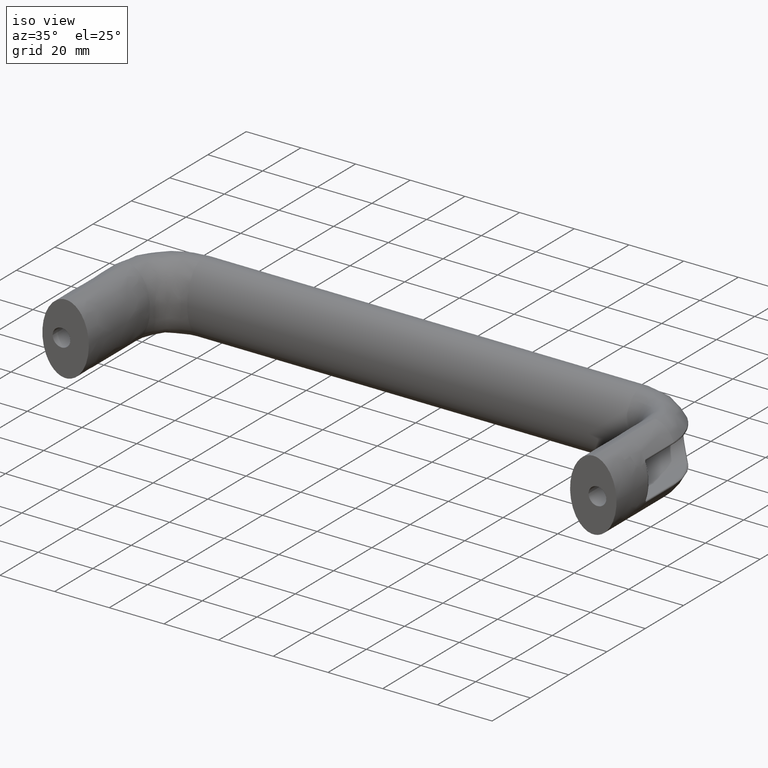
[diagram: clean part render]
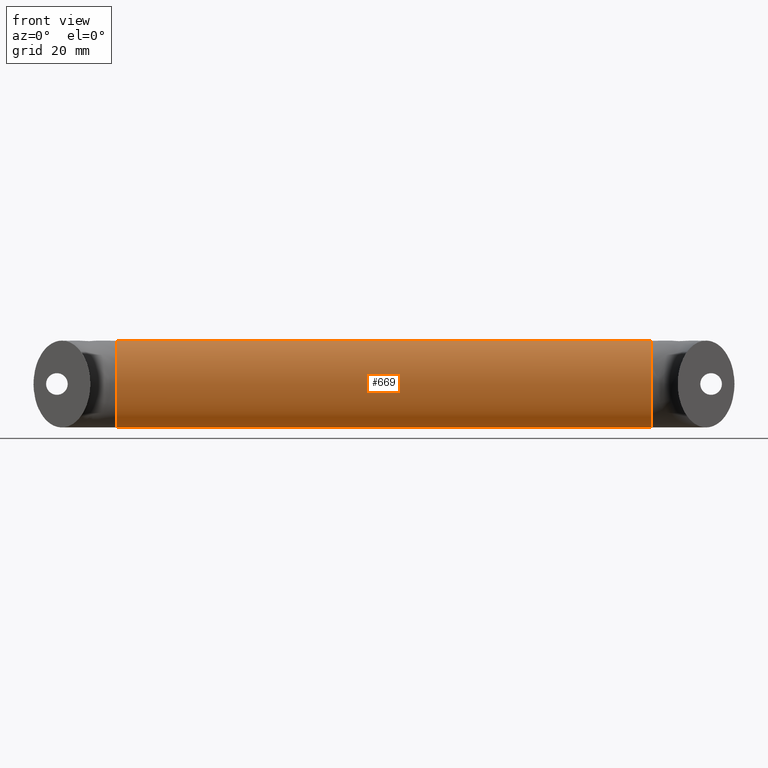
[diagram: tour spotlight — one face highlighted and labeled with its STEP entity id]
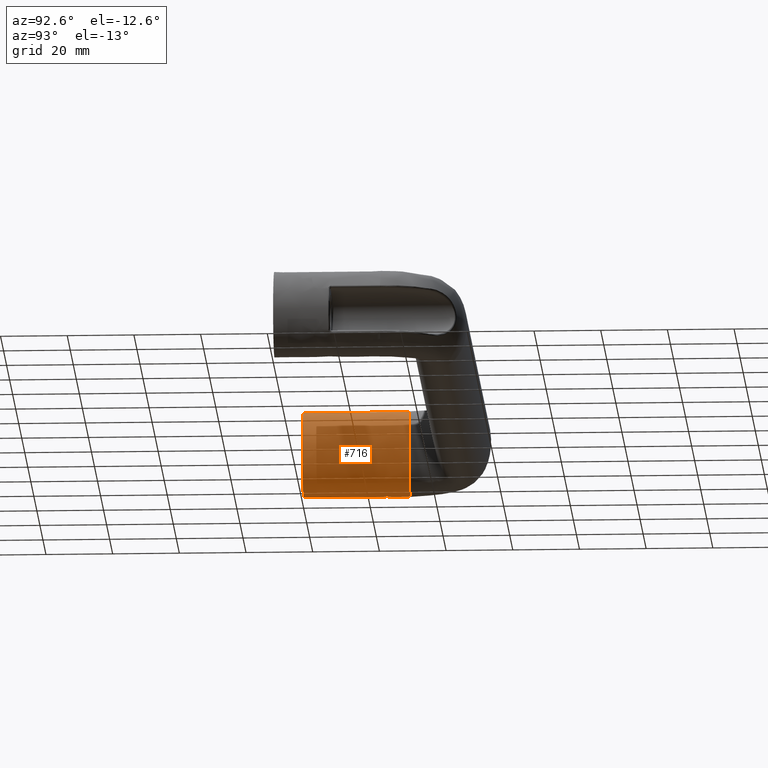
[diagram: tour spotlight — one face highlighted and labeled with its STEP entity id]
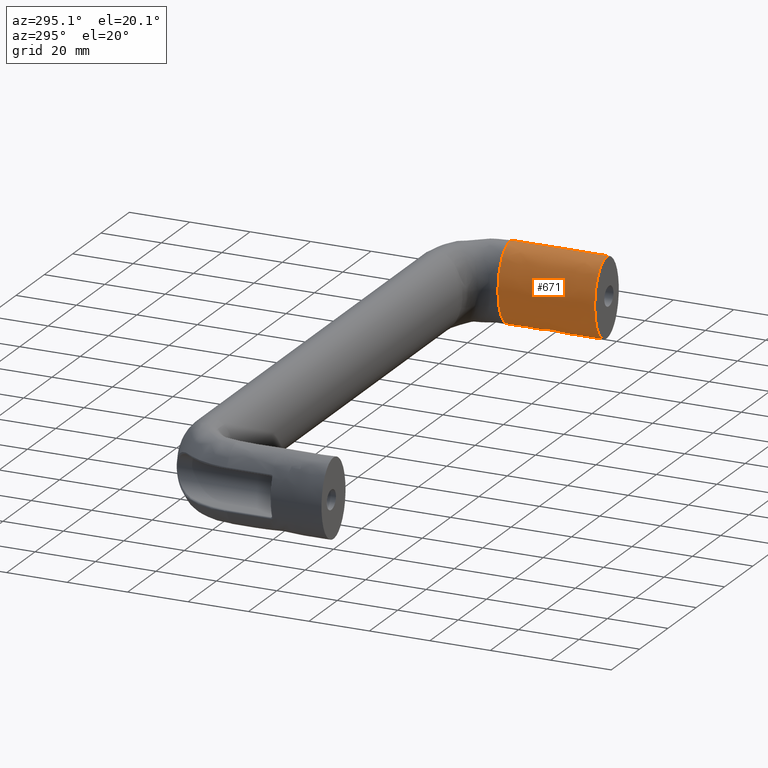
[diagram: tour spotlight — one face highlighted and labeled with its STEP entity id]
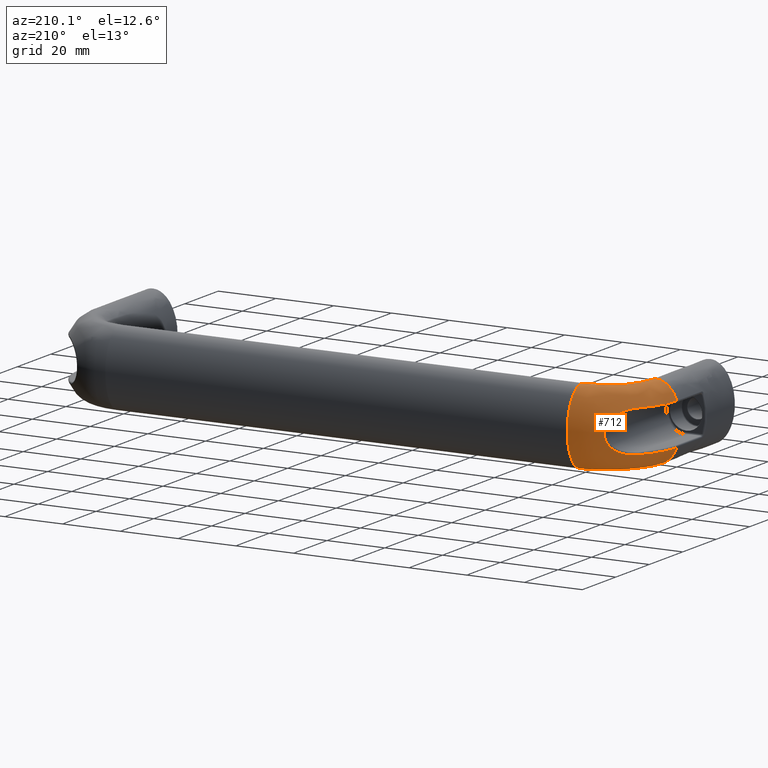
[diagram: tour spotlight — one face highlighted and labeled with its STEP entity id]
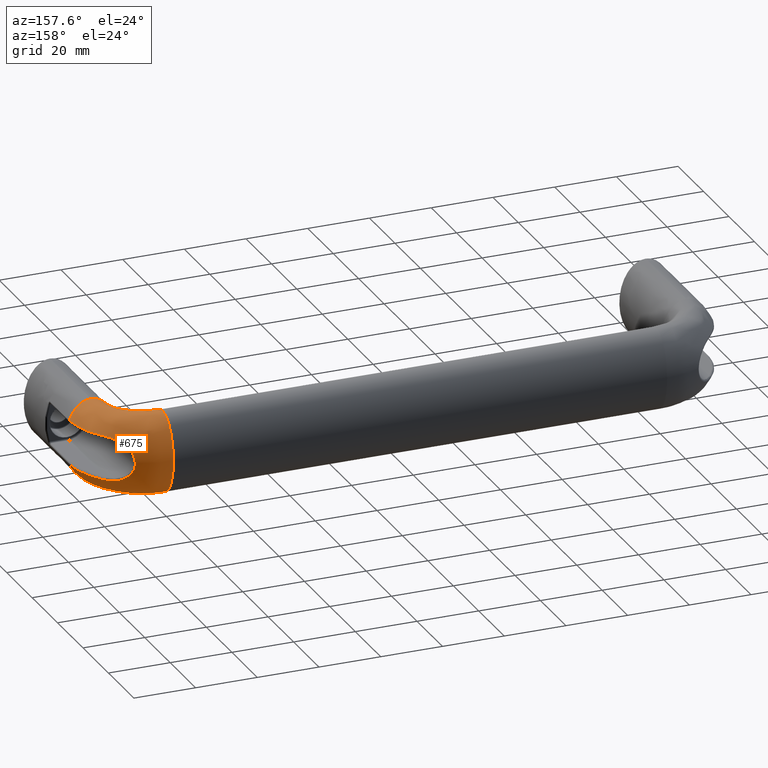
[diagram: tour spotlight — one face highlighted and labeled with its STEP entity id]
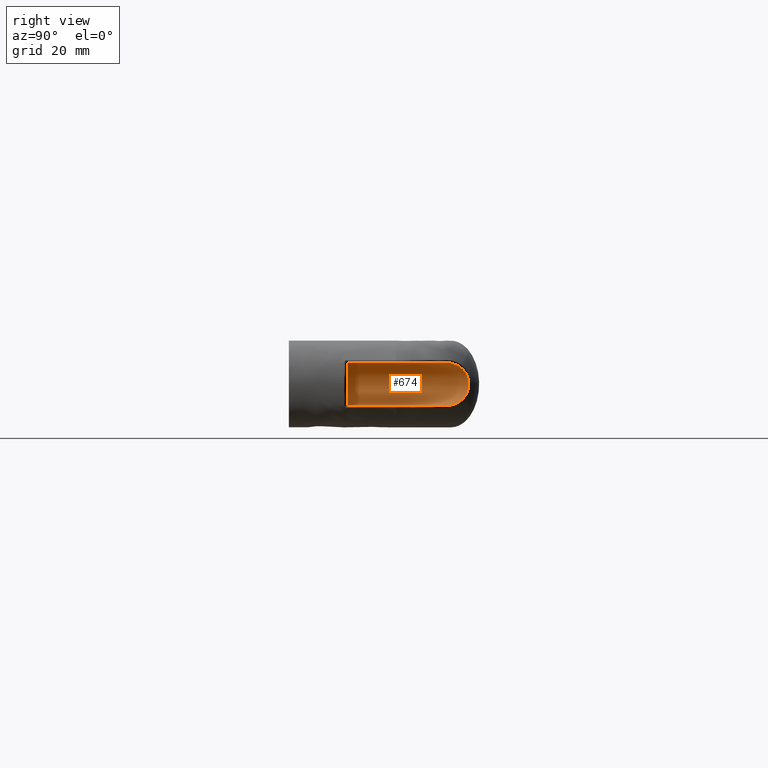
[diagram: tour spotlight — one face highlighted and labeled with its STEP entity id]
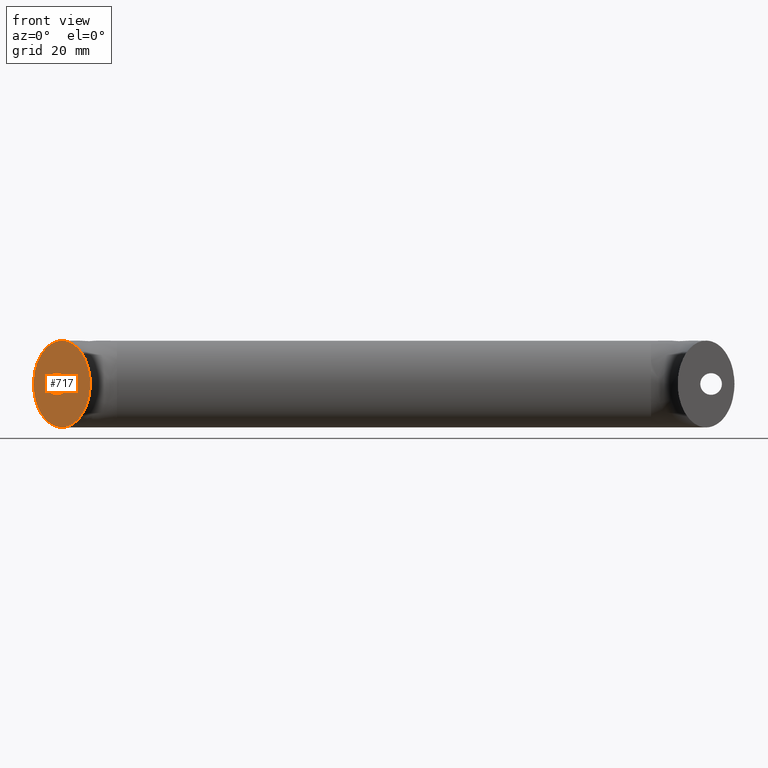
[diagram: tour spotlight — one face highlighted and labeled with its STEP entity id]
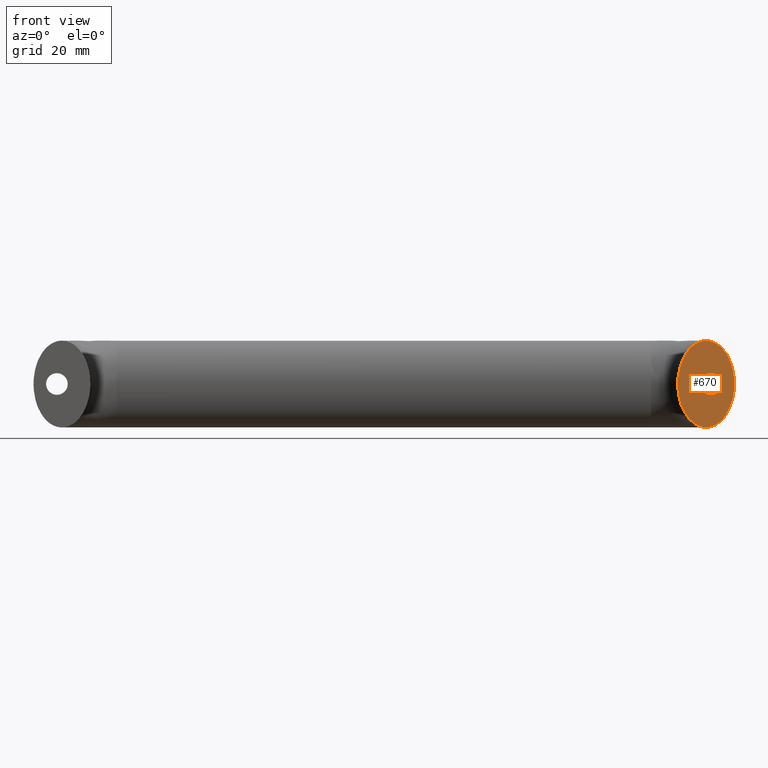
[diagram: tour spotlight — one face highlighted and labeled with its STEP entity id]
A machine part: a face-by-face anatomy tour. The part has 49 B-rep faces; the first image is the clean iso view, then the 8 largest visible faces are spotlighted one at a time (largest first), each with its STEP entity span.

Face 1 — front view, entity #669. In plain terms, the highlighted face is a freeform B-spline surface patch.
Definition (entity closure, byte-faithful):
#162=FACE_OUTER_BOUND('',#211,.T.);
#211=EDGE_LOOP('',(#470,#471,#472,#473));
#276=B_SPLINE_CURVE_WITH_KNOTS('',1,(#1018,#1019),.UNSPECIFIED.,.F.,.F.,
(2,2),(-6.15384615384616,6.15384615384615),.UNSPECIFIED.);
#299=ELLIPSE('',#720,13.,8.5);
#300=ELLIPSE('',#721,13.,8.5);
#311=VERTEX_POINT('',#1015);
#312=VERTEX_POINT('',#1017);
#373=EDGE_CURVE('',#311,#311,#299,.T.);
#374=EDGE_CURVE('',#311,#312,#276,.T.);
#375=EDGE_CURVE('',#312,#312,#300,.T.);
#470=ORIENTED_EDGE('',*,*,#373,.F.);
#471=ORIENTED_EDGE('',*,*,#374,.T.);
#472=ORIENTED_EDGE('',*,*,#375,.T.);
#473=ORIENTED_EDGE('',*,*,#374,.F.);
#664=(
BOUNDED_SURFACE()
B_SPLINE_SURFACE(1,2,((#997,#998,#999,#1000,#1001,#1002,#1003,#1004,#1005),
(#1006,#1007,#1008,#1009,#1010,#1011,#1012,#1013,#1014)),.UNSPECIFIED.,
 .F.,.T.,.F.)
B_SPLINE_SURFACE_WITH_KNOTS((2,2),(3,2,2,2,3),(-6.15384615384615,6.15384615384616),
(-3.14159265358979,-1.5707963267949,0.,1.5707963267949,3.14159265358979),
 .UNSPECIFIED.)
GEOMETRIC_REPRESENTATION_ITEM()
RATIONAL_B_SPLINE_SURFACE(((1.,0.707106781186548,1.,0.707106781186548,1.,
0.707106781186548,1.,0.707106781186548,1.),(1.,0.707106781186548,1.,0.707106781186548,
1.,0.707106781186548,1.,0.707106781186548,1.)))
REPRESENTATION_ITEM('')
SURFACE()
);
#669=ADVANCED_FACE('',(#162),#664,.F.);
#720=AXIS2_PLACEMENT_3D('',#1016,#806,#807);
#721=AXIS2_PLACEMENT_3D('',#1020,#808,#809);
#806=DIRECTION('center_axis',(1.,6.12323399573677E-17,0.));
#807=DIRECTION('ref_axis',(0.,0.,-1.));
#808=DIRECTION('center_axis',(1.,6.12323399573677E-17,0.));
#809=DIRECTION('ref_axis',(0.,0.,-1.));
#997=CARTESIAN_POINT('Ctrl Pts',(16.5,48.5000000000001,-13.));
#998=CARTESIAN_POINT('Ctrl Pts',(16.5,57.0000000000001,-13.));
#999=CARTESIAN_POINT('Ctrl Pts',(16.5,57.0000000000001,0.));
#1000=CARTESIAN_POINT('Ctrl Pts',(16.5,57.0000000000001,13.));
#1001=CARTESIAN_POINT('Ctrl Pts',(16.5,48.5000000000001,13.));
#1002=CARTESIAN_POINT('Ctrl Pts',(16.5,40.0000000000001,13.));
#1003=CARTESIAN_POINT('Ctrl Pts',(16.5,40.0000000000001,0.));
#1004=CARTESIAN_POINT('Ctrl Pts',(16.5,40.0000000000001,-13.));
#1005=CARTESIAN_POINT('Ctrl Pts',(16.5,48.5000000000001,-13.));
#1006=CARTESIAN_POINT('Ctrl Pts',(176.5,48.5000000000001,-13.));
#1007=CARTESIAN_POINT('Ctrl Pts',(176.5,57.0000000000001,-13.));
#1008=CARTESIAN_POINT('Ctrl Pts',(176.5,57.0000000000001,0.));
#1009=CARTESIAN_POINT('Ctrl Pts',(176.5,57.0000000000001,13.));
#1010=CARTESIAN_POINT('Ctrl Pts',(176.5,48.5000000000001,13.));
#1011=CARTESIAN_POINT('Ctrl Pts',(176.5,40.0000000000001,13.));
#1012=CARTESIAN_POINT('Ctrl Pts',(176.5,40.0000000000001,0.));
#1013=CARTESIAN_POINT('Ctrl Pts',(176.5,40.0000000000001,-13.));
#1014=CARTESIAN_POINT('Ctrl Pts',(176.5,48.5000000000001,-13.));
#1015=CARTESIAN_POINT('',(176.5,48.5000000000001,-13.));
#1016=CARTESIAN_POINT('Origin',(176.5,48.5000000000001,0.));
#1017=CARTESIAN_POINT('',(16.5,48.5,-13.));
#1018=CARTESIAN_POINT('Ctrl Pts',(176.5,48.5000000000001,-13.));
#1019=CARTESIAN_POINT('Ctrl Pts',(16.5,48.5000000000001,-13.));
#1020=CARTESIAN_POINT('Origin',(16.5,48.5,0.));

Face 2 — auxiliary view, entity #716. In plain terms, the highlighted face is a freeform B-spline surface patch.
Definition (entity closure, byte-faithful):
#65=LINE('',#1593,#87);
#67=LINE('',#1781,#89);
#73=LINE('',#1876,#95);
#87=VECTOR('',#947,14.5);
#89=VECTOR('',#957,14.5);
#95=VECTOR('',#991,32.);
#209=FACE_OUTER_BOUND('',#273,.T.);
#273=EDGE_LOOP('',(#651,#652,#653,#654,#655,#656,#657,#658,#659,#660,#661));
#290=B_SPLINE_CURVE_WITH_KNOTS('',3,(#1529,#1530,#1531,#1532,#1533,#1534),
 .UNSPECIFIED.,.F.,.F.,(4,1,1,4),(-0.162803649215564,-0.11628832086826,
-0.0697729925209562,0.),.UNSPECIFIED.);
#291=B_SPLINE_CURVE_WITH_KNOTS('',3,(#1574,#1575,#1576,#1577,#1578,#1579),
 .UNSPECIFIED.,.F.,.F.,(4,1,1,4),(-0.162801566641001,-0.116286833315001,
-0.0697720999890005,0.),.UNSPECIFIED.);
#306=ELLIPSE('',#794,13.0000000000007,8.50000000000101);
#307=ELLIPSE('',#795,13.,8.5);
#308=ELLIPSE('',#796,13.,8.5);
#309=ELLIPSE('',#798,13.,8.5);
#310=ELLIPSE('',#802,13.,8.5);
#355=VERTEX_POINT('',#1526);
#356=VERTEX_POINT('',#1528);
#357=VERTEX_POINT('',#1572);
#358=VERTEX_POINT('',#1573);
#361=VERTEX_POINT('',#1591);
#367=VERTEX_POINT('',#1768);
#370=VERTEX_POINT('',#1846);
#371=VERTEX_POINT('',#1848);
#372=VERTEX_POINT('',#1875);
#436=EDGE_CURVE('',#355,#356,#290,.T.);
#438=EDGE_CURVE('',#357,#358,#291,.T.);
#443=EDGE_CURVE('',#361,#355,#65,.T.);
#454=EDGE_CURVE('',#358,#367,#67,.T.);
#461=EDGE_CURVE('',#356,#357,#306,.T.);
#462=EDGE_CURVE('',#367,#370,#307,.T.);
#463=EDGE_CURVE('',#370,#371,#308,.T.);
#465=EDGE_CURVE('',#371,#361,#309,.T.);
#468=EDGE_CURVE('',#370,#372,#73,.T.);
#469=EDGE_CURVE('',#372,#372,#310,.T.);
#651=ORIENTED_EDGE('',*,*,#443,.F.);
#652=ORIENTED_EDGE('',*,*,#465,.F.);
#653=ORIENTED_EDGE('',*,*,#463,.F.);
#654=ORIENTED_EDGE('',*,*,#468,.T.);
#655=ORIENTED_EDGE('',*,*,#469,.T.);
#656=ORIENTED_EDGE('',*,*,#468,.F.);
#657=ORIENTED_EDGE('',*,*,#462,.F.);
#658=ORIENTED_EDGE('',*,*,#454,.F.);
#659=ORIENTED_EDGE('',*,*,#438,.F.);
#660=ORIENTED_EDGE('',*,*,#461,.F.);
#661=ORIENTED_EDGE('',*,*,#436,.F.);
#668=(
BOUNDED_SURFACE()
B_SPLINE_SURFACE(2,1,((#1857,#1858),(#1859,#1860),(#1861,#1862),(#1863,
#1864),(#1865,#1866),(#1867,#1868),(#1869,#1870),(#1871,#1872),(#1873,#1874)),
 .UNSPECIFIED.,.T.,.F.,.F.)
B_SPLINE_SURFACE_WITH_KNOTS((3,2,2,2,3),(2,2),(-3.14159265358979,-1.5707963267949,
0.,1.5707963267949,3.14159265358979),(0.,3.84),.UNSPECIFIED.)
GEOMETRIC_REPRESENTATION_ITEM()
RATIONAL_B_SPLINE_SURFACE(((1.,1.),(0.707106781186548,0.707106781186548),
(1.,1.),(0.707106781186548,0.707106781186548),(1.,1.),(0.707106781186548,
0.707106781186548),(1.,1.),(0.707106781186548,0.707106781186548),(1.,1.)))
REPRESENTATION_ITEM('')
SURFACE()
);
#716=ADVANCED_FACE('',(#209),#668,.T.);
#794=AXIS2_PLACEMENT_3D('',#1818,#973,#974);
#795=AXIS2_PLACEMENT_3D('',#1847,#975,#976);
#796=AXIS2_PLACEMENT_3D('',#1849,#977,#978);
#798=AXIS2_PLACEMENT_3D('',#1851,#981,#982);
#802=AXIS2_PLACEMENT_3D('',#1877,#992,#993);
#947=DIRECTION('',(1.73472347597681E-16,-1.,0.));
#957=DIRECTION('',(-1.73472347597681E-16,1.,0.));
#973=DIRECTION('center_axis',(2.18335285217344E-15,1.,-1.96157278075204E-26));
#974=DIRECTION('ref_axis',(-5.43110620688082E-15,1.96275858287477E-26,1.));
#975=DIRECTION('center_axis',(0.,1.,0.));
#976=DIRECTION('ref_axis',(0.,0.,-1.));
#977=DIRECTION('center_axis',(0.,1.,0.));
#978=DIRECTION('ref_axis',(0.,0.,-1.));
#981=DIRECTION('center_axis',(0.,1.,0.));
#982=DIRECTION('ref_axis',(0.,0.,-1.));
#991=DIRECTION('',(1.73472347597681E-16,-1.,0.));
#992=DIRECTION('center_axis',(0.,1.,0.));
#993=DIRECTION('ref_axis',(0.,0.,-1.));
#1526=CARTESIAN_POINT('',(-7.07752292926048,17.5,-7.19939933326705));
#1528=CARTESIAN_POINT('',(-7.48300591698164,16.5,-6.16613274174768));
#1529=CARTESIAN_POINT('Ctrl Pts',(-7.07752292922739,17.5,-7.19939933334315));
#1530=CARTESIAN_POINT('Ctrl Pts',(-7.07752292922739,17.344948905509,-7.19939933334315));
#1531=CARTESIAN_POINT('Ctrl Pts',(-7.11148146669345,17.0359268522296,-7.12201041401155));
#1532=CARTESIAN_POINT('Ctrl Pts',(-7.2609256925932,16.6224701056188,-6.76616779655913));
#1533=CARTESIAN_POINT('Ctrl Pts',(-7.40326259068019,16.4999999999122,-6.39249625163423));
#1534=CARTESIAN_POINT('Ctrl Pts',(-7.48300591698164,16.5,-6.16613274174768));
#1572=CARTESIAN_POINT('',(-7.48300591687084,16.5,6.1661327420622));
#1573=CARTESIAN_POINT('',(-7.07752292926047,17.5,7.19939933326707));
#1574=CARTESIAN_POINT('Ctrl Pts',(-7.48300591687084,16.5,6.1661327420622));
#1575=CARTESIAN_POINT('Ctrl Pts',(-7.4298443793813,16.499999999986,6.31703981823325));
#1576=CARTESIAN_POINT('Ctrl Pts',(-7.31924589596769,16.5653278864208,6.61635681753704));
#1577=CARTESIAN_POINT('Ctrl Pts',(-7.14320757920186,16.8860053352928,7.05110482725177));
#1578=CARTESIAN_POINT('Ctrl Pts',(-7.07752292922738,17.2674263333702,7.19939933334317));
#1579=CARTESIAN_POINT('Ctrl Pts',(-7.07752292922738,17.5,7.19939933334317));
#1591=CARTESIAN_POINT('',(-7.07752292926049,32.,-7.19939933326705));
#1593=CARTESIAN_POINT('',(-7.07752292926048,-1.22775451771523E-15,-7.19939933326705));
#1768=CARTESIAN_POINT('',(-7.07752292922738,32.,7.19939933334317));
#1781=CARTESIAN_POINT('',(-7.07752292926047,-1.22775451771523E-15,7.19939933326707));
#1818=CARTESIAN_POINT('Origin',(1.00364161426114E-12,16.5,-5.44009282066327E-14));
#1846=CARTESIAN_POINT('',(-4.51016534385053E-15,32.,13.));
#1847=CARTESIAN_POINT('Origin',(-5.55111512312578E-15,32.,0.));
#1848=CARTESIAN_POINT('',(-5.55111512312578E-15,32.,-13.));
#1849=CARTESIAN_POINT('Origin',(-5.55111512312578E-15,32.,0.));
#1851=CARTESIAN_POINT('Origin',(-5.55111512312578E-15,32.,0.));
#1857=CARTESIAN_POINT('Ctrl Pts',(2.5578757073893E-31,-1.47451495458029E-15,
13.));
#1858=CARTESIAN_POINT('Ctrl Pts',(-6.66133814775094E-15,38.4,13.));
#1859=CARTESIAN_POINT('Ctrl Pts',(8.5,-4.93038065763132E-31,13.));
#1860=CARTESIAN_POINT('Ctrl Pts',(8.49999999999999,38.4,13.));
#1861=CARTESIAN_POINT('Ctrl Pts',(8.5,0.,0.));
#1862=CARTESIAN_POINT('Ctrl Pts',(8.49999999999999,38.4,0.));
#1863=CARTESIAN_POINT('Ctrl Pts',(8.5,-3.69778549322349E-31,-13.));
#1864=CARTESIAN_POINT('Ctrl Pts',(8.49999999999999,38.4,-13.));
#1865=CARTESIAN_POINT('Ctrl Pts',(2.5578757073893E-31,-1.47451495458029E-15,
-13.));
#1866=CARTESIAN_POINT('Ctrl Pts',(-6.66133814775094E-15,38.4,-13.));
#1867=CARTESIAN_POINT('Ctrl Pts',(-8.5,-2.94902990916057E-15,-13.));
#1868=CARTESIAN_POINT('Ctrl Pts',(-8.50000000000001,38.4,-13.));
#1869=CARTESIAN_POINT('Ctrl Pts',(-8.5,-2.94902990916057E-15,0.));
#1870=CARTESIAN_POINT('Ctrl Pts',(-8.50000000000001,38.4,0.));
#1871=CARTESIAN_POINT('Ctrl Pts',(-8.5,-2.94902990916057E-15,13.));
#1872=CARTESIAN_POINT('Ctrl Pts',(-8.50000000000001,38.4,13.));
#1873=CARTESIAN_POINT('Ctrl Pts',(2.5578757073893E-31,-1.47451495458029E-15,
13.));
#1874=CARTESIAN_POINT('Ctrl Pts',(-6.66133814775094E-15,38.4,13.));
#1875=CARTESIAN_POINT('',(1.04094977927525E-15,-1.47451495458029E-15,13.));
#1876=CARTESIAN_POINT('',(1.04094977927525E-15,1.80576001942165E-31,13.));
#1877=CARTESIAN_POINT('Origin',(0.,0.,0.));

Face 3 — auxiliary view, entity #671. In plain terms, the highlighted face is a freeform B-spline surface patch.
Definition (entity closure, byte-faithful):
#52=LINE('',#1045,#74);
#53=LINE('',#1051,#75);
#54=LINE('',#1069,#76);
#74=VECTOR('',#816,32.0000000000001);
#75=VECTOR('',#821,14.5000000000001);
#76=VECTOR('',#824,14.5000000000001);
#164=FACE_OUTER_BOUND('',#214,.T.);
#214=EDGE_LOOP('',(#476,#477,#478,#479,#480,#481,#482,#483,#484,#485,#486));
#277=B_SPLINE_CURVE_WITH_KNOTS('',3,(#1053,#1054,#1055,#1056,#1057,#1058),
 .UNSPECIFIED.,.F.,.F.,(4,1,1,4),(-0.162801566641003,-0.116286833315002,
-0.0697720999890013,0.),.UNSPECIFIED.);
#278=B_SPLINE_CURVE_WITH_KNOTS('',3,(#1062,#1063,#1064,#1065,#1066,#1067),
 .UNSPECIFIED.,.F.,.F.,(4,1,1,4),(-0.162803649215569,-0.116288320868263,
-0.0930306566946107,0.),.UNSPECIFIED.);
#301=ELLIPSE('',#723,13.,8.5);
#302=ELLIPSE('',#725,13.,8.5);
#303=ELLIPSE('',#726,13.,8.5);
#304=ELLIPSE('',#727,12.9999999999838,8.49999999997735);
#305=ELLIPSE('',#728,13.,8.5);
#313=VERTEX_POINT('',#1022);
#315=VERTEX_POINT('',#1044);
#316=VERTEX_POINT('',#1046);
#317=VERTEX_POINT('',#1048);
#318=VERTEX_POINT('',#1050);
#319=VERTEX_POINT('',#1052);
#320=VERTEX_POINT('',#1059);
#321=VERTEX_POINT('',#1061);
#322=VERTEX_POINT('',#1068);
#376=EDGE_CURVE('',#313,#313,#301,.T.);
#378=EDGE_CURVE('',#313,#315,#52,.T.);
#379=EDGE_CURVE('',#315,#316,#302,.T.);
#380=EDGE_CURVE('',#316,#317,#303,.T.);
#381=EDGE_CURVE('',#318,#317,#53,.T.);
#382=EDGE_CURVE('',#319,#318,#277,.T.);
#383=EDGE_CURVE('',#320,#319,#304,.T.);
#384=EDGE_CURVE('',#321,#320,#278,.T.);
#385=EDGE_CURVE('',#322,#321,#54,.T.);
#386=EDGE_CURVE('',#322,#315,#305,.T.);
#476=ORIENTED_EDGE('',*,*,#376,.F.);
#477=ORIENTED_EDGE('',*,*,#378,.T.);
#478=ORIENTED_EDGE('',*,*,#379,.T.);
#479=ORIENTED_EDGE('',*,*,#380,.T.);
#480=ORIENTED_EDGE('',*,*,#381,.F.);
#481=ORIENTED_EDGE('',*,*,#382,.F.);
#482=ORIENTED_EDGE('',*,*,#383,.F.);
#483=ORIENTED_EDGE('',*,*,#384,.F.);
#484=ORIENTED_EDGE('',*,*,#385,.F.);
#485=ORIENTED_EDGE('',*,*,#386,.T.);
#486=ORIENTED_EDGE('',*,*,#378,.F.);
#665=(
BOUNDED_SURFACE()
B_SPLINE_SURFACE(2,1,((#1026,#1027),(#1028,#1029),(#1030,#1031),(#1032,
#1033),(#1034,#1035),(#1036,#1037),(#1038,#1039),(#1040,#1041),(#1042,#1043)),
 .UNSPECIFIED.,.T.,.F.,.F.)
B_SPLINE_SURFACE_WITH_KNOTS((3,2,2,2,3),(2,2),(-3.14159265358979,-1.5707963267949,
0.,1.5707963267949,3.14159265358979),(0.,3.84000000000001),
 .UNSPECIFIED.)
GEOMETRIC_REPRESENTATION_ITEM()
RATIONAL_B_SPLINE_SURFACE(((1.,1.),(0.707106781186548,0.707106781186548),
(1.,1.),(0.707106781186548,0.707106781186548),(1.,1.),(0.707106781186548,
0.707106781186548),(1.,1.),(0.707106781186548,0.707106781186548),(1.,1.)))
REPRESENTATION_ITEM('')
SURFACE()
);
#671=ADVANCED_FACE('',(#164),#665,.T.);
#723=AXIS2_PLACEMENT_3D('',#1023,#812,#813);
#725=AXIS2_PLACEMENT_3D('',#1047,#817,#818);
#726=AXIS2_PLACEMENT_3D('',#1049,#819,#820);
#727=AXIS2_PLACEMENT_3D('',#1060,#822,#823);
#728=AXIS2_PLACEMENT_3D('',#1070,#825,#826);
#812=DIRECTION('center_axis',(3.44509284839767E-16,-1.,0.));
#813=DIRECTION('ref_axis',(0.,0.,-1.));
#816=DIRECTION('',(0.,1.,0.));
#817=DIRECTION('center_axis',(3.44509284839767E-16,-1.,0.));
#818=DIRECTION('ref_axis',(0.,0.,-1.));
#819=DIRECTION('center_axis',(3.44509284839767E-16,-1.,0.));
#820=DIRECTION('ref_axis',(0.,0.,-1.));
#821=DIRECTION('',(0.,1.,0.));
#822=DIRECTION('center_axis',(4.36670599670736E-15,1.,-3.9236175640155E-26));
#823=DIRECTION('ref_axis',(-4.29576659534567E-14,3.94237591376785E-26,1.));
#824=DIRECTION('',(0.,-1.,0.));
#825=DIRECTION('center_axis',(3.44509284839767E-16,-1.,0.));
#826=DIRECTION('ref_axis',(0.,0.,-1.));
#1022=CARTESIAN_POINT('',(193.,-4.44089209850063E-15,13.));
#1023=CARTESIAN_POINT('Origin',(193.,0.,0.));
#1026=CARTESIAN_POINT('Ctrl Pts',(193.,32.0000000000001,13.));
#1027=CARTESIAN_POINT('Ctrl Pts',(193.,-6.40000000000002,13.));
#1028=CARTESIAN_POINT('Ctrl Pts',(184.5,32.0000000000001,13.));
#1029=CARTESIAN_POINT('Ctrl Pts',(184.5,-6.40000000000002,13.));
#1030=CARTESIAN_POINT('Ctrl Pts',(184.5,32.0000000000001,0.));
#1031=CARTESIAN_POINT('Ctrl Pts',(184.5,-6.40000000000002,0.));
#1032=CARTESIAN_POINT('Ctrl Pts',(184.5,32.0000000000001,-13.));
#1033=CARTESIAN_POINT('Ctrl Pts',(184.5,-6.40000000000002,-13.));
#1034=CARTESIAN_POINT('Ctrl Pts',(193.,32.0000000000001,-13.));
#1035=CARTESIAN_POINT('Ctrl Pts',(193.,-6.40000000000002,-13.));
#1036=CARTESIAN_POINT('Ctrl Pts',(201.5,32.0000000000001,-13.));
#1037=CARTESIAN_POINT('Ctrl Pts',(201.5,-6.40000000000002,-13.));
#1038=CARTESIAN_POINT('Ctrl Pts',(201.5,32.0000000000001,0.));
#1039=CARTESIAN_POINT('Ctrl Pts',(201.5,-6.40000000000002,0.));
#1040=CARTESIAN_POINT('Ctrl Pts',(201.5,32.0000000000001,13.));
#1041=CARTESIAN_POINT('Ctrl Pts',(201.5,-6.40000000000002,13.));
#1042=CARTESIAN_POINT('Ctrl Pts',(193.,32.0000000000001,13.));
#1043=CARTESIAN_POINT('Ctrl Pts',(193.,-6.40000000000002,13.));
#1044=CARTESIAN_POINT('',(193.,32.0000000000001,13.));
#1045=CARTESIAN_POINT('',(193.,32.0000000000001,13.));
#1046=CARTESIAN_POINT('',(193.,32.0000000000001,-13.));
#1047=CARTESIAN_POINT('Origin',(193.,32.0000000000001,0.));
#1048=CARTESIAN_POINT('',(200.077522929227,32.0000000000001,-7.19939933334315));
#1049=CARTESIAN_POINT('Origin',(193.,32.0000000000001,0.));
#1050=CARTESIAN_POINT('',(200.07752292926,17.5,-7.19939933326705));
#1051=CARTESIAN_POINT('',(200.07752292926,32.0000000000001,-7.19939933326705));
#1052=CARTESIAN_POINT('',(200.483005916871,16.5,-6.16613274206217));
#1053=CARTESIAN_POINT('Ctrl Pts',(200.483005916871,16.5,-6.16613274206218));
#1054=CARTESIAN_POINT('Ctrl Pts',(200.429844379381,16.4999999999859,-6.31703981823328));
#1055=CARTESIAN_POINT('Ctrl Pts',(200.3192490492,16.5653336977449,-6.61635071145327));
#1056=CARTESIAN_POINT('Ctrl Pts',(200.143213815373,16.886016146742,-7.05109343631951));
#1057=CARTESIAN_POINT('Ctrl Pts',(200.077522929227,17.2674263333699,-7.19939933334316));
#1058=CARTESIAN_POINT('Ctrl Pts',(200.077522929227,17.4999999999999,-7.19939933334307));
#1059=CARTESIAN_POINT('',(200.483005916982,16.5,6.16613274174768));
#1060=CARTESIAN_POINT('Origin',(193.000000000023,16.5,4.2410519540681E-13));
#1061=CARTESIAN_POINT('',(200.07752292926,17.5,7.19939933326707));
#1062=CARTESIAN_POINT('Ctrl Pts',(200.077522929227,17.5,7.19939933334316));
#1063=CARTESIAN_POINT('Ctrl Pts',(200.077522929227,17.3449489055089,7.19939933334319));
#1064=CARTESIAN_POINT('Ctrl Pts',(200.102737874363,17.1140330730565,7.1414986452404));
#1065=CARTESIAN_POINT('Ctrl Pts',(200.230215074373,16.6666940516964,6.84058929021712));
#1066=CARTESIAN_POINT('Ctrl Pts',(200.376681481913,16.4999999998828,6.46795075492982));
#1067=CARTESIAN_POINT('Ctrl Pts',(200.483005916982,16.5,6.16613274174767));
#1068=CARTESIAN_POINT('',(200.07752292926,32.0000000000001,7.19939933326706));
#1069=CARTESIAN_POINT('',(200.07752292926,32.0000000000001,7.19939933326707));
#1070=CARTESIAN_POINT('Origin',(193.,32.0000000000001,0.));

Face 4 — auxiliary view, entity #712. In plain terms, the highlighted face is a freeform B-spline surface patch.
Definition (entity closure, byte-faithful):
#151=CIRCLE('',#797,16.5);
#205=FACE_OUTER_BOUND('',#269,.T.);
#269=EDGE_LOOP('',(#630,#631,#632,#633,#634,#635,#636,#637,#638));
#293=B_SPLINE_CURVE_WITH_KNOTS('',3,(#1628,#1629,#1630,#1631,#1632),
 .UNSPECIFIED.,.F.,.F.,(4,1,4),(-1.56834099361024,-0.672146140118672,0.),
 .UNSPECIFIED.);
#295=B_SPLINE_CURVE_WITH_KNOTS('',3,(#1713,#1714,#1715,#1716,#1717,#1718,
#1719,#1720,#1721,#1722,#1723,#1724),.UNSPECIFIED.,.F.,.F.,(4,1,1,1,1,1,
1,1,1,4),(-2.73713341995059,-2.34611435996047,-1.95509529997035,-1.56407623998023,
-1.36856670998517,-1.17305717999011,-0.977547649995054,-0.782038119999995,
-0.391019060009876,-1.97568226080099E-11),.UNSPECIFIED.);
#297=B_SPLINE_CURVE_WITH_KNOTS('',3,(#1770,#1771,#1772,#1773,#1774),
 .UNSPECIFIED.,.F.,.F.,(4,1,4),(-1.56834099359296,-0.67214614011127,0.),
 .UNSPECIFIED.);
#300=ELLIPSE('',#721,13.,8.5);
#307=ELLIPSE('',#795,13.,8.5);
#308=ELLIPSE('',#796,13.,8.5);
#309=ELLIPSE('',#798,13.,8.5);
#312=VERTEX_POINT('',#1017);
#361=VERTEX_POINT('',#1591);
#363=VERTEX_POINT('',#1626);
#365=VERTEX_POINT('',#1711);
#367=VERTEX_POINT('',#1768);
#370=VERTEX_POINT('',#1846);
#371=VERTEX_POINT('',#1848);
#375=EDGE_CURVE('',#312,#312,#300,.T.);
#446=EDGE_CURVE('',#363,#361,#293,.T.);
#449=EDGE_CURVE('',#365,#363,#295,.T.);
#452=EDGE_CURVE('',#367,#365,#297,.T.);
#462=EDGE_CURVE('',#367,#370,#307,.T.);
#463=EDGE_CURVE('',#370,#371,#308,.T.);
#464=EDGE_CURVE('',#371,#312,#151,.T.);
#465=EDGE_CURVE('',#371,#361,#309,.T.);
#630=ORIENTED_EDGE('',*,*,#446,.F.);
#631=ORIENTED_EDGE('',*,*,#449,.F.);
#632=ORIENTED_EDGE('',*,*,#452,.F.);
#633=ORIENTED_EDGE('',*,*,#462,.T.);
#634=ORIENTED_EDGE('',*,*,#463,.T.);
#635=ORIENTED_EDGE('',*,*,#464,.T.);
#636=ORIENTED_EDGE('',*,*,#375,.F.);
#637=ORIENTED_EDGE('',*,*,#464,.F.);
#638=ORIENTED_EDGE('',*,*,#465,.T.);
#667=(
BOUNDED_SURFACE()
B_SPLINE_SURFACE(2,2,((#1819,#1820,#1821),(#1822,#1823,#1824),(#1825,#1826,
#1827),(#1828,#1829,#1830),(#1831,#1832,#1833),(#1834,#1835,#1836),(#1837,
#1838,#1839),(#1840,#1841,#1842),(#1843,#1844,#1845)),.UNSPECIFIED.,.T.,
 .F.,.F.)
B_SPLINE_SURFACE_WITH_KNOTS((3,2,2,2,3),(3,3),(0.,1.5707963267949,3.14159265358979,
4.71238898038469,6.28318530717959),(-4.08008349979889E-5,1.5707963267949),
 .UNSPECIFIED.)
GEOMETRIC_REPRESENTATION_ITEM()
RATIONAL_B_SPLINE_SURFACE(((1.00001521597434,0.70709917339699,1.),(0.707117540505183,
0.499994620480414,0.707106781186548),(1.00001521597434,0.70709917339699,
1.),(0.707117540505183,0.499994620480414,0.707106781186548),(1.00001521597434,
0.70709917339699,1.),(0.707117540505183,0.499994620480414,0.707106781186548),
(1.00001521597434,0.70709917339699,1.),(0.707117540505182,0.499994620480414,
0.707106781186547),(1.00001521597434,0.70709917339699,1.)))
REPRESENTATION_ITEM('')
SURFACE()
);
#712=ADVANCED_FACE('',(#205),#667,.T.);
#721=AXIS2_PLACEMENT_3D('',#1020,#808,#809);
#795=AXIS2_PLACEMENT_3D('',#1847,#975,#976);
#796=AXIS2_PLACEMENT_3D('',#1849,#977,#978);
#797=AXIS2_PLACEMENT_3D('',#1850,#979,#980);
#798=AXIS2_PLACEMENT_3D('',#1851,#981,#982);
#808=DIRECTION('center_axis',(1.,6.12323399573677E-17,0.));
#809=DIRECTION('ref_axis',(0.,0.,-1.));
#975=DIRECTION('center_axis',(0.,1.,0.));
#976=DIRECTION('ref_axis',(0.,0.,-1.));
#977=DIRECTION('center_axis',(0.,1.,0.));
#978=DIRECTION('ref_axis',(0.,0.,-1.));
#979=DIRECTION('center_axis',(0.,0.,-1.));
#980=DIRECTION('ref_axis',(-1.,5.38289951333409E-16,0.));
#981=DIRECTION('center_axis',(0.,1.,0.));
#982=DIRECTION('ref_axis',(0.,0.,-1.));
#1017=CARTESIAN_POINT('',(16.5,48.5,-13.));
#1020=CARTESIAN_POINT('Origin',(16.5,48.5,0.));
#1591=CARTESIAN_POINT('',(-7.07752292926049,32.,-7.19939933326705));
#1626=CARTESIAN_POINT('',(-1.8569940419417,46.7959574621703,-7.19939933334355));
#1628=CARTESIAN_POINT('Ctrl Pts',(-1.8569940419417,46.7959574621703,-7.19939933334356));
#1629=CARTESIAN_POINT('Ctrl Pts',(-3.7688499212126,44.4239631471989,-7.19939933334341));
#1630=CARTESIAN_POINT('Ctrl Pts',(-6.29835274982981,39.6172254887225,-7.19939933334321));
#1631=CARTESIAN_POINT('Ctrl Pts',(-7.07752292922739,34.28492272025,-7.19939933334315));
#1632=CARTESIAN_POINT('Ctrl Pts',(-7.07752292922739,32.,-7.19939933334315));
#1711=CARTESIAN_POINT('',(-1.85699404194166,46.7959574621703,7.19939933334357));
#1713=CARTESIAN_POINT('Ctrl Pts',(-1.85699404194166,46.7959574621703,7.19939933334357));
#1714=CARTESIAN_POINT('Ctrl Pts',(-1.02283159853651,47.8308830519828,7.19939933336523));
#1715=CARTESIAN_POINT('Ctrl Pts',(0.721272891299881,49.8443085028624,6.89931292423004));
#1716=CARTESIAN_POINT('Ctrl Pts',(3.31614106619054,52.5234161218493,5.31373234152123));
#1717=CARTESIAN_POINT('Ctrl Pts',(4.98873262577921,54.079668884796,2.6799542302579));
#1718=CARTESIAN_POINT('Ctrl Pts',(5.37164696577319,54.4252223455474,-0.00334554233025799));
#1719=CARTESIAN_POINT('Ctrl Pts',(5.08400137353434,54.1656207378298,-2.00308649229853));
#1720=CARTESIAN_POINT('Ctrl Pts',(4.31825860677852,53.4564545774715,-3.74569868260892));
#1721=CARTESIAN_POINT('Ctrl Pts',(2.88730818516472,52.0791853350294,-5.56687954652814));
#1722=CARTESIAN_POINT('Ctrl Pts',(0.717211850879931,49.8414038013757,-6.90647153776252));
#1723=CARTESIAN_POINT('Ctrl Pts',(-1.02283159852044,47.8308830520018,-7.19939933336333));
#1724=CARTESIAN_POINT('Ctrl Pts',(-1.85699404192584,46.7959574621899,-7.19939933334355));
#1768=CARTESIAN_POINT('',(-7.07752292922738,32.,7.19939933334317));
#1770=CARTESIAN_POINT('Ctrl Pts',(-7.07752292922738,32.,7.19939933334317));
#1771=CARTESIAN_POINT('Ctrl Pts',(-7.07752292922738,35.0465636269664,7.19939933334317));
#1772=CARTESIAN_POINT('Ctrl Pts',(-6.03049955674753,40.3763716473556,7.19939933334325));
#1773=CARTESIAN_POINT('Ctrl Pts',(-3.29088595147634,45.0169617258135,7.19939933334346));
#1774=CARTESIAN_POINT('Ctrl Pts',(-1.85699404205224,46.7959574620331,7.19939933334357));
#1819=CARTESIAN_POINT('Ctrl Pts',(1.11320592950517E-8,31.9993938992632,
-13.));
#1820=CARTESIAN_POINT('Ctrl Pts',(-0.000606111869287595,48.5,-13.));
#1821=CARTESIAN_POINT('Ctrl Pts',(16.5,48.5,-13.));
#1822=CARTESIAN_POINT('Ctrl Pts',(-8.49999998313325,31.9990816655503,-13.));
#1823=CARTESIAN_POINT('Ctrl Pts',(-8.50091835131711,57.,-13.));
#1824=CARTESIAN_POINT('Ctrl Pts',(16.5,57.,-13.));
#1825=CARTESIAN_POINT('Ctrl Pts',(-8.49999998313325,31.9990816655503,-7.9602041944578E-16));
#1826=CARTESIAN_POINT('Ctrl Pts',(-8.50091835131711,57.,-7.9602041944578E-16));
#1827=CARTESIAN_POINT('Ctrl Pts',(16.5,57.,-7.9602041944578E-16));
#1828=CARTESIAN_POINT('Ctrl Pts',(-8.49999998313325,31.9990816655503,13.));
#1829=CARTESIAN_POINT('Ctrl Pts',(-8.50091835131711,57.,13.));
#1830=CARTESIAN_POINT('Ctrl Pts',(16.5,57.,13.));
#1831=CARTESIAN_POINT('Ctrl Pts',(1.11320570746056E-8,31.9993938992632,
13.));
#1832=CARTESIAN_POINT('Ctrl Pts',(-0.000606111869289816,48.5,13.));
#1833=CARTESIAN_POINT('Ctrl Pts',(16.5,48.5,13.));
#1834=CARTESIAN_POINT('Ctrl Pts',(8.50000000539736,31.9997061329761,13.));
#1835=CARTESIAN_POINT('Ctrl Pts',(8.49970612757853,40.,13.));
#1836=CARTESIAN_POINT('Ctrl Pts',(16.5,40.,13.));
#1837=CARTESIAN_POINT('Ctrl Pts',(8.50000000539735,31.9997061329761,2.38806125833734E-15));
#1838=CARTESIAN_POINT('Ctrl Pts',(8.49970612757853,40.,2.38806125833734E-15));
#1839=CARTESIAN_POINT('Ctrl Pts',(16.5,40.,2.38806125833734E-15));
#1840=CARTESIAN_POINT('Ctrl Pts',(8.50000000539737,31.9997061329761,-13.));
#1841=CARTESIAN_POINT('Ctrl Pts',(8.49970612757853,40.,-13.));
#1842=CARTESIAN_POINT('Ctrl Pts',(16.5,40.,-13.));
#1843=CARTESIAN_POINT('Ctrl Pts',(1.11320592950517E-8,31.9993938992632,
-13.));
#1844=CARTESIAN_POINT('Ctrl Pts',(-0.000606111869287595,48.5,-13.));
#1845=CARTESIAN_POINT('Ctrl Pts',(16.5,48.5,-13.));
#1846=CARTESIAN_POINT('',(-4.51016534385053E-15,32.,13.));
#1847=CARTESIAN_POINT('Origin',(-5.55111512312578E-15,32.,0.));
#1848=CARTESIAN_POINT('',(-5.55111512312578E-15,32.,-13.));
#1849=CARTESIAN_POINT('Origin',(-5.55111512312578E-15,32.,0.));
#1850=CARTESIAN_POINT('Origin',(16.5,32.,-13.));
#1851=CARTESIAN_POINT('Origin',(-5.55111512312578E-15,32.,0.));

Face 5 — auxiliary view, entity #675. In plain terms, the highlighted face is a freeform B-spline surface patch.
Definition (entity closure, byte-faithful):
#114=CIRCLE('',#733,16.5);
#168=FACE_OUTER_BOUND('',#218,.T.);
#218=EDGE_LOOP('',(#499,#500,#501,#502,#503,#504,#505,#506,#507));
#282=B_SPLINE_CURVE_WITH_KNOTS('',3,(#1139,#1140,#1141,#1142,#1143),
 .UNSPECIFIED.,.F.,.F.,(4,1,4),(-1.56834099361023,-0.67214614011867,0.),
 .UNSPECIFIED.);
#283=B_SPLINE_CURVE_WITH_KNOTS('',3,(#1145,#1146,#1147,#1148,#1149,#1150,
#1151,#1152,#1153,#1154,#1155,#1156),.UNSPECIFIED.,.F.,.F.,(4,1,1,1,1,1,
1,1,1,4),(-2.73713341995059,-2.34611435996047,-1.95509529997035,-1.56407623998023,
-1.36856670998517,-1.17305717999011,-0.977547649995054,-0.782038119999995,
-0.391019060009875,-1.97555219500692E-11),.UNSPECIFIED.);
#284=B_SPLINE_CURVE_WITH_KNOTS('',3,(#1157,#1158,#1159,#1160,#1161),
 .UNSPECIFIED.,.F.,.F.,(4,1,4),(-1.56834099359296,-0.896194853481694,0.),
 .UNSPECIFIED.);
#299=ELLIPSE('',#720,13.,8.5);
#302=ELLIPSE('',#725,13.,8.5);
#303=ELLIPSE('',#726,13.,8.5);
#305=ELLIPSE('',#728,13.,8.5);
#311=VERTEX_POINT('',#1015);
#315=VERTEX_POINT('',#1044);
#316=VERTEX_POINT('',#1046);
#317=VERTEX_POINT('',#1048);
#322=VERTEX_POINT('',#1068);
#331=VERTEX_POINT('',#1138);
#332=VERTEX_POINT('',#1144);
#373=EDGE_CURVE('',#311,#311,#299,.T.);
#379=EDGE_CURVE('',#315,#316,#302,.T.);
#380=EDGE_CURVE('',#316,#317,#303,.T.);
#386=EDGE_CURVE('',#322,#315,#305,.T.);
#397=EDGE_CURVE('',#331,#322,#282,.T.);
#398=EDGE_CURVE('',#332,#331,#283,.T.);
#399=EDGE_CURVE('',#317,#332,#284,.T.);
#400=EDGE_CURVE('',#311,#316,#114,.T.);
#499=ORIENTED_EDGE('',*,*,#397,.F.);
#500=ORIENTED_EDGE('',*,*,#398,.F.);
#501=ORIENTED_EDGE('',*,*,#399,.F.);
#502=ORIENTED_EDGE('',*,*,#380,.F.);
#503=ORIENTED_EDGE('',*,*,#400,.F.);
#504=ORIENTED_EDGE('',*,*,#373,.T.);
#505=ORIENTED_EDGE('',*,*,#400,.T.);
#506=ORIENTED_EDGE('',*,*,#379,.F.);
#507=ORIENTED_EDGE('',*,*,#386,.F.);
#666=(
BOUNDED_SURFACE()
B_SPLINE_SURFACE(2,2,((#1111,#1112,#1113),(#1114,#1115,#1116),(#1117,#1118,
#1119),(#1120,#1121,#1122),(#1123,#1124,#1125),(#1126,#1127,#1128),(#1129,
#1130,#1131),(#1132,#1133,#1134),(#1135,#1136,#1137)),.UNSPECIFIED.,.T.,
 .F.,.F.)
B_SPLINE_SURFACE_WITH_KNOTS((3,2,2,2,3),(3,3),(0.,1.5707963267949,3.14159265358979,
4.71238898038469,6.28318530717959),(0.,1.5708353078731),.UNSPECIFIED.)
GEOMETRIC_REPRESENTATION_ITEM()
RATIONAL_B_SPLINE_SURFACE(((1.,0.707099512711781,1.00001453731028),(0.707106781186545,
0.499994860412201,0.707117060617228),(1.,0.707099512711781,1.00001453731028),
(0.707106781186545,0.499994860412202,0.707117060617228),(1.,0.707099512711781,
1.00001453731028),(0.707106781186545,0.499994860412201,0.707117060617228),
(1.,0.707099512711781,1.00001453731028),(0.707106781186545,0.499994860412201,
0.707117060617228),(1.,0.707099512711781,1.00001453731028)))
REPRESENTATION_ITEM('')
SURFACE()
);
#675=ADVANCED_FACE('',(#168),#666,.T.);
#720=AXIS2_PLACEMENT_3D('',#1016,#806,#807);
#725=AXIS2_PLACEMENT_3D('',#1047,#817,#818);
#726=AXIS2_PLACEMENT_3D('',#1049,#819,#820);
#728=AXIS2_PLACEMENT_3D('',#1070,#825,#826);
#733=AXIS2_PLACEMENT_3D('',#1162,#841,#842);
#806=DIRECTION('center_axis',(1.,6.12323399573677E-17,0.));
#807=DIRECTION('ref_axis',(0.,0.,-1.));
#817=DIRECTION('center_axis',(3.44509284839767E-16,-1.,0.));
#818=DIRECTION('ref_axis',(0.,0.,-1.));
#819=DIRECTION('center_axis',(3.44509284839767E-16,-1.,0.));
#820=DIRECTION('ref_axis',(0.,0.,-1.));
#825=DIRECTION('center_axis',(3.44509284839767E-16,-1.,0.));
#826=DIRECTION('ref_axis',(0.,0.,-1.));
#841=DIRECTION('center_axis',(0.,0.,-1.));
#842=DIRECTION('ref_axis',(0.,1.,0.));
#1015=CARTESIAN_POINT('',(176.5,48.5000000000001,-13.));
#1016=CARTESIAN_POINT('Origin',(176.5,48.5000000000001,0.));
#1044=CARTESIAN_POINT('',(193.,32.0000000000001,13.));
#1046=CARTESIAN_POINT('',(193.,32.0000000000001,-13.));
#1047=CARTESIAN_POINT('Origin',(193.,32.0000000000001,0.));
#1048=CARTESIAN_POINT('',(200.077522929227,32.0000000000001,-7.19939933334315));
#1049=CARTESIAN_POINT('Origin',(193.,32.0000000000001,0.));
#1068=CARTESIAN_POINT('',(200.07752292926,32.0000000000001,7.19939933326706));
#1070=CARTESIAN_POINT('Origin',(193.,32.0000000000001,0.));
#1111=CARTESIAN_POINT('Ctrl Pts',(176.5,48.5000000000001,-13.));
#1112=CARTESIAN_POINT('Ctrl Pts',(193.000579078414,48.5,-13.));
#1113=CARTESIAN_POINT('Ctrl Pts',(192.999999989839,31.9994209317473,-13.));
#1114=CARTESIAN_POINT('Ctrl Pts',(176.5,57.0000000000001,-13.));
#1115=CARTESIAN_POINT('Ctrl Pts',(201.500877391537,57.0000000000001,-13.));
#1116=CARTESIAN_POINT('Ctrl Pts',(201.499999984604,31.9991226238595,-13.));
#1117=CARTESIAN_POINT('Ctrl Pts',(176.5,57.0000000000001,-7.9602041944578E-16));
#1118=CARTESIAN_POINT('Ctrl Pts',(201.500877391537,57.0000000000001,-7.9602041944578E-16));
#1119=CARTESIAN_POINT('Ctrl Pts',(201.499999984604,31.9991226238595,-7.9602041944578E-16));
#1120=CARTESIAN_POINT('Ctrl Pts',(176.5,57.0000000000001,13.));
#1121=CARTESIAN_POINT('Ctrl Pts',(201.500877391537,57.0000000000001,13.));
#1122=CARTESIAN_POINT('Ctrl Pts',(201.499999984604,31.9991226238595,13.));
#1123=CARTESIAN_POINT('Ctrl Pts',(176.5,48.5000000000001,13.));
#1124=CARTESIAN_POINT('Ctrl Pts',(193.000579078414,48.5,13.));
#1125=CARTESIAN_POINT('Ctrl Pts',(192.999999989839,31.9994209317473,13.));
#1126=CARTESIAN_POINT('Ctrl Pts',(176.5,40.0000000000001,13.));
#1127=CARTESIAN_POINT('Ctrl Pts',(184.500280765292,40.0000000000001,13.));
#1128=CARTESIAN_POINT('Ctrl Pts',(184.499999995073,31.9997192396351,13.));
#1129=CARTESIAN_POINT('Ctrl Pts',(176.5,40.0000000000001,2.38806125833734E-15));
#1130=CARTESIAN_POINT('Ctrl Pts',(184.500280765292,40.0000000000001,2.38806125833734E-15));
#1131=CARTESIAN_POINT('Ctrl Pts',(184.499999995073,31.9997192396351,2.38806125833734E-15));
#1132=CARTESIAN_POINT('Ctrl Pts',(176.5,40.0000000000001,-13.));
#1133=CARTESIAN_POINT('Ctrl Pts',(184.500280765292,40.0000000000001,-13.));
#1134=CARTESIAN_POINT('Ctrl Pts',(184.499999995073,31.9997192396351,-13.));
#1135=CARTESIAN_POINT('Ctrl Pts',(176.5,48.5000000000001,-13.));
#1136=CARTESIAN_POINT('Ctrl Pts',(193.000579078414,48.5,-13.));
#1137=CARTESIAN_POINT('Ctrl Pts',(192.999999989839,31.9994209317473,-13.));
#1138=CARTESIAN_POINT('',(194.856994041942,46.7959574621703,7.19939933334357));
#1139=CARTESIAN_POINT('Ctrl Pts',(194.856994041942,46.7959574621703,7.19939933334358));
#1140=CARTESIAN_POINT('Ctrl Pts',(196.768849921213,44.4239631471989,7.19939933334343));
#1141=CARTESIAN_POINT('Ctrl Pts',(199.298000324681,39.6171191230147,7.19939933334324));
#1142=CARTESIAN_POINT('Ctrl Pts',(200.077522929227,34.28492272025,7.19939933334318));
#1143=CARTESIAN_POINT('Ctrl Pts',(200.077522929227,32.0000000000001,7.19939933334318));
#1144=CARTESIAN_POINT('',(194.856994041942,46.7959574621704,-7.19939933334355));
#1145=CARTESIAN_POINT('Ctrl Pts',(194.856994041942,46.7959574621704,-7.19939933334355));
#1146=CARTESIAN_POINT('Ctrl Pts',(194.022831598536,47.8308830519829,-7.1993993333652));
#1147=CARTESIAN_POINT('Ctrl Pts',(192.278711570386,49.8443971525854,-6.89934047685718));
#1148=CARTESIAN_POINT('Ctrl Pts',(189.684057866221,52.5233000948184,-5.31333695646989));
#1149=CARTESIAN_POINT('Ctrl Pts',(188.011187669079,54.0797334751907,-2.67852917664312));
#1150=CARTESIAN_POINT('Ctrl Pts',(187.628388329711,54.4252212957947,0.00424991314157199));
#1151=CARTESIAN_POINT('Ctrl Pts',(187.916016364809,54.16563951682,2.00393363914375));
#1152=CARTESIAN_POINT('Ctrl Pts',(188.681808140969,53.4564574730782,3.74631558428614));
#1153=CARTESIAN_POINT('Ctrl Pts',(190.112635469038,52.0792725447971,5.56743772858804));
#1154=CARTESIAN_POINT('Ctrl Pts',(192.283039454318,49.8413186841216,6.90686551579911));
#1155=CARTESIAN_POINT('Ctrl Pts',(194.02283159852,47.8308830520019,7.19939933336334));
#1156=CARTESIAN_POINT('Ctrl Pts',(194.856994041926,46.79595746219,7.19939933334357));
#1157=CARTESIAN_POINT('Ctrl Pts',(200.077522929227,32.0000000000001,-7.19939933334316));
#1158=CARTESIAN_POINT('Ctrl Pts',(200.077522929227,34.2849227202249,-7.19939933334316));
#1159=CARTESIAN_POINT('Ctrl Pts',(199.298000324698,39.6171191229309,-7.19939933334322));
#1160=CARTESIAN_POINT('Ctrl Pts',(196.768849921284,44.4239631470737,-7.19939933334342));
#1161=CARTESIAN_POINT('Ctrl Pts',(194.856994042052,46.7959574620332,-7.19939933334356));
#1162=CARTESIAN_POINT('Origin',(176.5,32.0000000000001,-13.));

Face 6 — right view, entity #674. In plain terms, the highlighted cylindrical surface (edge-blend (fillet) strip) has radius 6.5 mm, axis along (0, -1, 0).
Definition (entity closure, byte-faithful):
#38=CYLINDRICAL_SURFACE('',#731,6.5);
#55=LINE('',#1080,#77);
#60=LINE('',#1096,#82);
#77=VECTOR('',#829,29.0082159809617);
#82=VECTOR('',#836,29.0082159809616);
#113=CIRCLE('',#732,6.5);
#167=FACE_OUTER_BOUND('',#217,.T.);
#217=EDGE_LOOP('',(#495,#496,#497,#498));
#281=B_SPLINE_CURVE_WITH_KNOTS('',3,(#1098,#1099,#1100,#1101,#1102,#1103,
#1104,#1105,#1106,#1107,#1108,#1109),.UNSPECIFIED.,.F.,.F.,(4,1,1,1,1,1,
1,1,1,4),(1.97555219500692E-11,0.391019060009875,0.782038119999995,0.977547649995054,
1.17305717999011,1.36856670998517,1.56407623998023,1.95509529997035,2.34611435996047,
2.73713341995059),.UNSPECIFIED.);
#323=VERTEX_POINT('',#1072);
#325=VERTEX_POINT('',#1079);
#328=VERTEX_POINT('',#1086);
#330=VERTEX_POINT('',#1094);
#388=EDGE_CURVE('',#323,#325,#55,.T.);
#394=EDGE_CURVE('',#328,#330,#60,.T.);
#395=EDGE_CURVE('',#328,#323,#281,.T.);
#396=EDGE_CURVE('',#325,#330,#113,.T.);
#495=ORIENTED_EDGE('',*,*,#395,.F.);
#496=ORIENTED_EDGE('',*,*,#394,.T.);
#497=ORIENTED_EDGE('',*,*,#396,.F.);
#498=ORIENTED_EDGE('',*,*,#388,.F.);
#674=ADVANCED_FACE('',(#167),#38,.F.);
#731=AXIS2_PLACEMENT_3D('',#1097,#837,#838);
#732=AXIS2_PLACEMENT_3D('',#1110,#839,#840);
#829=DIRECTION('',(0.,-1.,0.));
#836=DIRECTION('',(0.,-1.,0.));
#837=DIRECTION('center_axis',(0.,-1.,0.));
#838=DIRECTION('ref_axis',(0.,0.,-1.));
#839=DIRECTION('center_axis',(0.,1.,0.));
#840=DIRECTION('ref_axis',(-1.,0.,-6.12323399573678E-17));
#1072=CARTESIAN_POINT('',(194.500000000083,46.5082159809617,-6.49999999999999));
#1079=CARTESIAN_POINT('',(194.5,17.5,-6.49999999999999));
#1080=CARTESIAN_POINT('',(194.5,57.,-6.49999999999999));
#1086=CARTESIAN_POINT('',(194.50000000009,46.5082159809616,6.50000000000001));
#1094=CARTESIAN_POINT('',(194.5,17.5,6.50000000000001));
#1096=CARTESIAN_POINT('',(194.5,57.,6.50000000000001));
#1097=CARTESIAN_POINT('Origin',(194.5,57.,9.95025524307224E-15));
#1098=CARTESIAN_POINT('Ctrl Pts',(194.500000000152,46.5082159809809,6.50000000000001));
#1099=CARTESIAN_POINT('Ctrl Pts',(193.74048406963,47.5230150583374,6.50000000001776));
#1100=CARTESIAN_POINT('Ctrl Pts',(192.154865496726,49.4930409852729,6.23774077621545));
#1101=CARTESIAN_POINT('Ctrl Pts',(190.175892965574,51.6822404746058,5.0332622243473));
#1102=CARTESIAN_POINT('Ctrl Pts',(188.872023714788,53.0290357411625,3.3895202712539));
#1103=CARTESIAN_POINT('Ctrl Pts',(188.174420286684,53.7226324598691,1.81398298463042));
#1104=CARTESIAN_POINT('Ctrl Pts',(187.912476605208,53.9765761422985,0.00389610188064576));
#1105=CARTESIAN_POINT('Ctrl Pts',(188.261095021414,53.6385804250278,-2.42470743794716));
#1106=CARTESIAN_POINT('Ctrl Pts',(189.785070428575,52.1165503532323,-4.80497067572917));
#1107=CARTESIAN_POINT('Ctrl Pts',(192.150950209576,49.496069820347,-6.23086767184471));
#1108=CARTESIAN_POINT('Ctrl Pts',(193.740484069645,47.5230150583188,-6.50000000001942));
#1109=CARTESIAN_POINT('Ctrl Pts',(194.500000000166,46.5082159809617,-6.49999999999999));
#1110=CARTESIAN_POINT('Origin',(194.5,17.5,9.95025524307224E-15));

Face 7 — front view, entity #717. In plain terms, the highlighted planar face has unit normal (0, 1, 0).
Definition (entity closure, byte-faithful):
#111=FACE_BOUND('',#275,.T.);
#137=CIRCLE('',#773,3.25);
#161=PLANE('',#803);
#210=FACE_OUTER_BOUND('',#274,.T.);
#274=EDGE_LOOP('',(#662));
#275=EDGE_LOOP('',(#663));
#310=ELLIPSE('',#802,13.,8.5);
#348=VERTEX_POINT('',#1465);
#372=VERTEX_POINT('',#1875);
#428=EDGE_CURVE('',#348,#348,#137,.T.);
#469=EDGE_CURVE('',#372,#372,#310,.T.);
#662=ORIENTED_EDGE('',*,*,#469,.F.);
#663=ORIENTED_EDGE('',*,*,#428,.T.);
#717=ADVANCED_FACE('',(#210,#111),#161,.F.);
#773=AXIS2_PLACEMENT_3D('',#1466,#923,#924);
#802=AXIS2_PLACEMENT_3D('',#1877,#992,#993);
#803=AXIS2_PLACEMENT_3D('',#1878,#994,#995);
#923=DIRECTION('center_axis',(0.,1.,0.));
#924=DIRECTION('ref_axis',(1.,0.,0.));
#992=DIRECTION('center_axis',(0.,1.,0.));
#993=DIRECTION('ref_axis',(0.,0.,-1.));
#994=DIRECTION('center_axis',(0.,1.,0.));
#995=DIRECTION('ref_axis',(0.,0.,1.));
#1465=CARTESIAN_POINT('',(-4.75000000000002,0.,1.02878864022942E-14));
#1466=CARTESIAN_POINT('Origin',(-1.50000000000002,0.,9.88987619257135E-15));
#1875=CARTESIAN_POINT('',(1.04094977927525E-15,-1.47451495458029E-15,13.));
#1877=CARTESIAN_POINT('Origin',(0.,0.,0.));
#1878=CARTESIAN_POINT('Origin',(0.,0.,0.));

Face 8 — front view, entity #670. In plain terms, the highlighted planar face has unit normal (0, -1, 0).
Definition (entity closure, byte-faithful):
#96=FACE_BOUND('',#213,.T.);
#112=CIRCLE('',#724,3.25);
#152=PLANE('',#722);
#163=FACE_OUTER_BOUND('',#212,.T.);
#212=EDGE_LOOP('',(#474));
#213=EDGE_LOOP('',(#475));
#301=ELLIPSE('',#723,13.,8.5);
#313=VERTEX_POINT('',#1022);
#314=VERTEX_POINT('',#1024);
#376=EDGE_CURVE('',#313,#313,#301,.T.);
#377=EDGE_CURVE('',#314,#314,#112,.T.);
#474=ORIENTED_EDGE('',*,*,#376,.T.);
#475=ORIENTED_EDGE('',*,*,#377,.T.);
#670=ADVANCED_FACE('',(#163,#96),#152,.T.);
#722=AXIS2_PLACEMENT_3D('',#1021,#810,#811);
#723=AXIS2_PLACEMENT_3D('',#1023,#812,#813);
#724=AXIS2_PLACEMENT_3D('',#1025,#814,#815);
#810=DIRECTION('center_axis',(3.44509284839767E-16,-1.,0.));
#811=DIRECTION('ref_axis',(0.,0.,1.));
#812=DIRECTION('center_axis',(3.44509284839767E-16,-1.,0.));
#813=DIRECTION('ref_axis',(0.,0.,-1.));
#814=DIRECTION('center_axis',(-3.44509284839767E-16,1.,0.));
#815=DIRECTION('ref_axis',(1.,3.44509284839767E-16,0.));
#1021=CARTESIAN_POINT('Origin',(193.,0.,0.));
#1022=CARTESIAN_POINT('',(193.,-4.44089209850063E-15,13.));
#1023=CARTESIAN_POINT('Origin',(193.,0.,0.));
#1024=CARTESIAN_POINT('',(191.25,0.,1.03482654527951E-14));
#1025=CARTESIAN_POINT('Origin',(194.5,0.,9.95025524307224E-15));